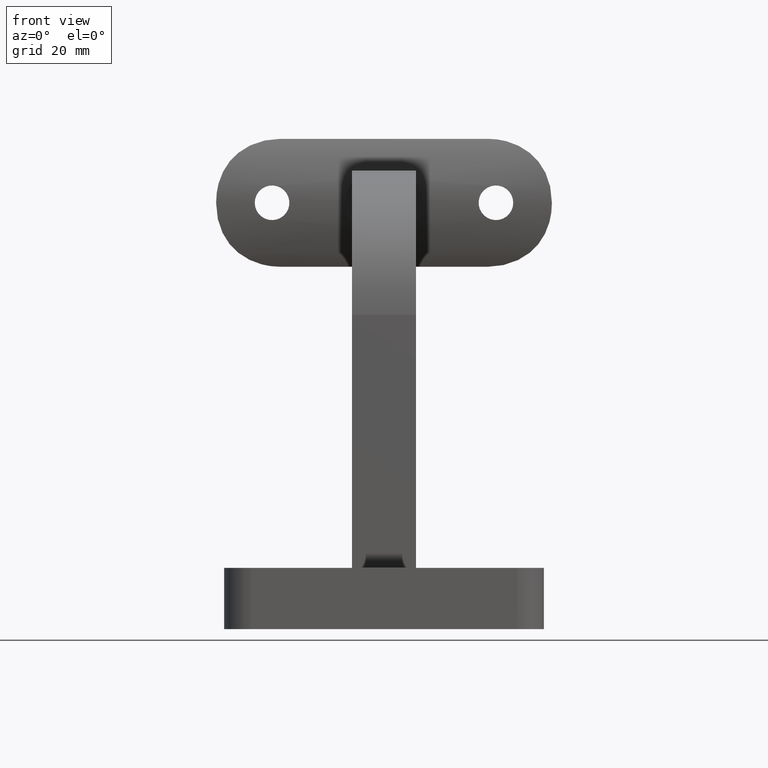
[diagram: clean part render]
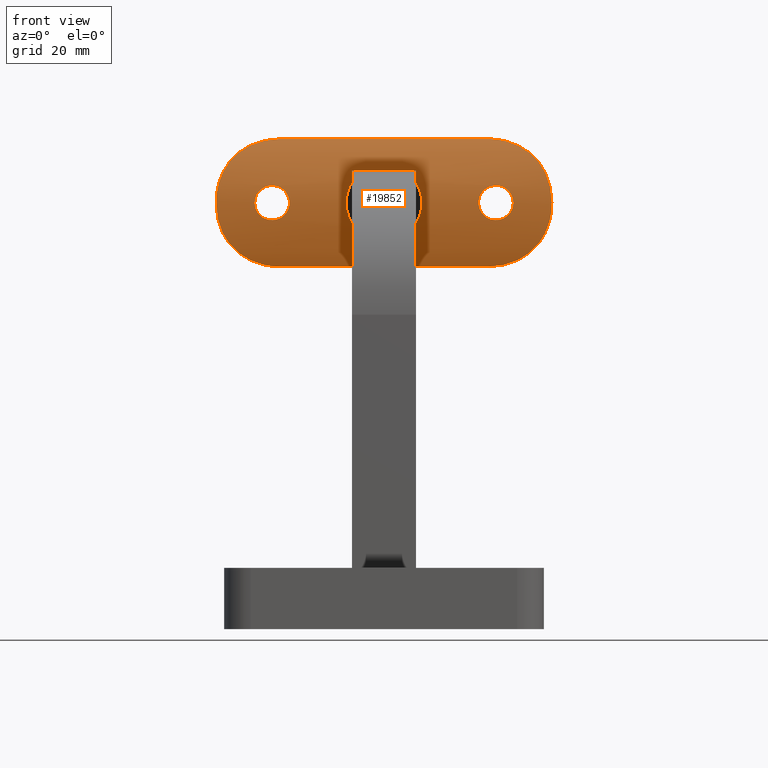
[diagram: same view with one face highlighted and labeled with its STEP entity id]
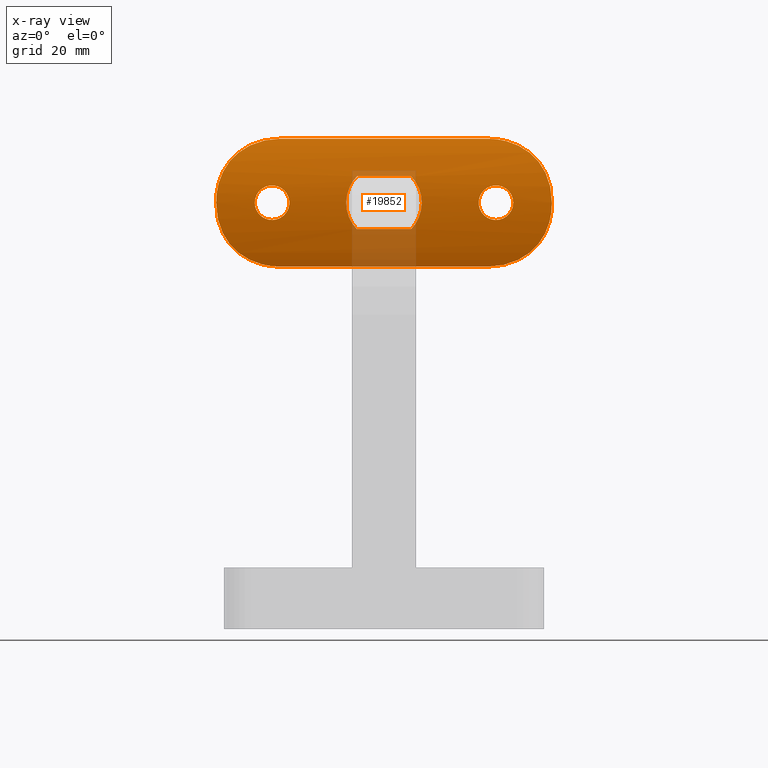
[diagram: x-ray of the same camera — body ghosted, the highlighted face saturated]
A machine part, front view. The second image highlights one B-rep face of the part: STEP entity #19852.
The next image is the same camera in x-ray: the body ghosted, the highlighted face saturated — about 8% of this face is hidden behind the body in this view.
In plain terms, the highlighted cylindrical surface (partial cylindrical patch) has radius 24.7 mm, axis along (1, -0, -0).
Its self-contained STEP definition (entity closure, byte-faithful):
#20 = B_SPLINE_CURVE_WITH_KNOTS ( 'NONE', 3,
 ( #4424, #10915, #10840, #1337, #1397, #2967, #5829, #12714, #11060, #6320, #17378, #14137, #12844, #4843, #9395, #3040, #17499, #1733, #12574, #7974, #7904, #15925, #6379, #14344 ),
 .UNSPECIFIED., .F., .F.,
 ( 4, 2, 2, 2, 2, 2, 2, 2, 2, 2, 2, 4 ),
 ( 1.018549874411314213E-19, 0.002407596472457979985, 0.003611394708686971496, 0.004815192944915964307, 0.007222789417373949930, 0.008426587653602947078, 0.009630385889831942492, 0.01083418412606093964, 0.01203798236228993505, 0.01444557883474792935, 0.01685317530720592538, 0.01926077177966391968 ),
 .UNSPECIFIED. ) ;
#60 = CARTESIAN_POINT ( 'NONE',  ( 3.249880998723770009, -3.285266457778697191, -21.21401965252696797 ) ) ;
#186 = CARTESIAN_POINT ( 'NONE',  ( 2.148643466521440448, -3.406827119913415469, -23.44758434933312685 ) ) ;
#209 = CARTESIAN_POINT ( 'NONE',  ( -4.345683333910672630, -3.117644390435899027, 30.82586979659556192 ) ) ;
#233 = CARTESIAN_POINT ( 'NONE',  ( 12.00000000000000000, -0.3891176290278198224, 20.31369584259640604 ) ) ;
#253 = CARTESIAN_POINT ( 'NONE',  ( 1.631891750141179154, -3.446663392802080672, 18.18145392592213838 ) ) ;
#324 = CARTESIAN_POINT ( 'NONE',  ( -3.084503152530318371, -3.306786141279531854, 22.04579137482486928 ) ) ;
#377 = CARTESIAN_POINT ( 'NONE',  ( 1.616414263079191338, -3.459901341102897376, 31.43731128375658201 ) ) ;
#396 = CARTESIAN_POINT ( 'NONE',  ( -0.4274466900177084638, -3.497194931004350860, 24.22888114623808065 ) ) ;
#462 = CARTESIAN_POINT ( 'NONE',  ( 0.2134336483071487822, -3.499989428722896978, 17.75008034171161242 ) ) ;
#597 = CARTESIAN_POINT ( 'NONE',  ( 3.097063540819441130, -3.305910537528220949, -6.392974342041944702 ) ) ;
#652 = CARTESIAN_POINT ( 'NONE',  ( 4.944694126030440451, -2.999999999999999556, -5.095095681142804978 ) ) ;
#655 = CARTESIAN_POINT ( 'NONE',  ( -11.92859548616417698, -0.4292482158758177402, -21.11347366024902783 ) ) ;
#709 = CARTESIAN_POINT ( 'NONE',  ( -2.919109473246688680, -3.327037974719329938, -19.55546040873659663 ) ) ;
#727 = EDGE_CURVE ( 'NONE', #10520, #6050, #10445, .T. ) ;
#765 = ORIENTED_EDGE ( 'NONE', *, *, #1102, .F. ) ;
#868 = DIRECTION ( 'NONE',  ( -0.000000000000000000, -0.000000000000000000, -1.000000000000000000 ) ) ;
#922 = CARTESIAN_POINT ( 'NONE',  ( -9.174398946052685133, -1.734467328778706907, -27.58503671903728005 ) ) ;
#988 = CARTESIAN_POINT ( 'NONE',  ( 0.4532788388944515856, -3.500063135315374829, 7.100219639782651804 ) ) ;
#1063 = CARTESIAN_POINT ( 'NONE',  ( 3.495493188238731008, -3.254484873472217377, 6.196811374408940587 ) ) ;
#1102 = EDGE_CURVE ( 'NONE', #10811, #16059, #19742, .T. ) ;
#1126 = CARTESIAN_POINT ( 'NONE',  ( -0.9240031095776750636, -3.486776667714122979, 7.054365866429916032 ) ) ;
#1337 = CARTESIAN_POINT ( 'NONE',  ( 2.796109589762970860, -3.344419946068636129, -31.23832297120842583 ) ) ;
#1397 = CARTESIAN_POINT ( 'NONE',  ( 3.186978305075531370, -3.296663330154672611, -31.15440249755115332 ) ) ;
#1527 = FACE_BOUND ( 'NONE', #13715, .T. ) ;
#1593 = LINE ( 'NONE', #1783, #18667 ) ;
#1632 = CARTESIAN_POINT ( 'NONE',  ( 12.00000000000000178, -0.3891176290278198779, -19.50000000000000355 ) ) ;
#1635 = ORIENTED_EDGE ( 'NONE', *, *, #727, .T. ) ;
#1649 = CARTESIAN_POINT ( 'NONE',  ( 1.048445795597582553, -3.478523968811645162, -17.91639793004620884 ) ) ;
#1714 = CARTESIAN_POINT ( 'NONE',  ( 2.819978761927810051, -3.338779599132366549, -19.37058408495830975 ) ) ;
#1733 = CARTESIAN_POINT ( 'NONE',  ( 10.51579242464841357, -1.154463491023566490, -25.65865357391695412 ) ) ;
#1741 = EDGE_CURVE ( 'NONE', #16082, #15120, #15395, .T. ) ;
#1783 = CARTESIAN_POINT ( 'NONE',  ( -4.944694126030445780, -2.999999999999999112, 31.50000000000000000 ) ) ;
#1887 = CARTESIAN_POINT ( 'NONE',  ( 2.804642605329991767, -3.343479015047384539, 31.23668300403213749 ) ) ;
#1905 = CARTESIAN_POINT ( 'NONE',  ( 1.818665662782729120, -3.437028619440265054, -6.878249394357240476 ) ) ;
#1910 = CARTESIAN_POINT ( 'NONE',  ( -1.631801882374062984, -3.446681808548467618, 23.81876159671215731 ) ) ;
#1975 = CARTESIAN_POINT ( 'NONE',  ( -4.616574547446769650, -3.067043427804063693, -5.413529534870623827 ) ) ;
#1997 = CARTESIAN_POINT ( 'NONE',  ( -8.911261608662785605, -1.838321853592154609, 27.88239206832154693 ) ) ;
#2010 = CYLINDRICAL_SURFACE ( 'NONE', #9292, 24.69999999999999929 ) ;
#2027 = CARTESIAN_POINT ( 'NONE',  ( 11.92859548616417875, -0.4292482158758161304, 21.11347366024901717 ) ) ;
#2045 = CARTESIAN_POINT ( 'NONE',  ( -1.052444521325399451, -3.478343608760877892, 24.08214993768254786 ) ) ;
#2082 = CARTESIAN_POINT ( 'NONE',  ( -3.084503152530318371, -3.306786141279530966, -22.04579137482486928 ) ) ;
#2195 = CARTESIAN_POINT ( 'NONE',  ( -9.882580253765651079, -1.437978920396825622, 26.65824030469761752 ) ) ;
#2214 = CARTESIAN_POINT ( 'NONE',  ( -3.249807177699458371, -3.285276256254570093, -20.78221223882569291 ) ) ;
#2265 = CARTESIAN_POINT ( 'NONE',  ( -9.653965207986141550, -1.536749814308947748, 26.98022621720532399 ) ) ;
#2295 = CARTESIAN_POINT ( 'NONE',  ( -10.86687449944537320, -0.9833561896143341308, -24.95091473416315608 ) ) ;
#2359 = VECTOR ( 'NONE', #7603, 1000.000000000000000 ) ;
#2419 = CARTESIAN_POINT ( 'NONE',  ( -4.263216709342484201, -3.132316574868765802, 5.695535537392245828 ) ) ;
#2688 = CARTESIAN_POINT ( 'NONE',  ( 3.090487835511218861, -3.309543690326352650, 6.408178955208401639 ) ) ;
#2702 = EDGE_CURVE ( 'NONE', #6050, #10421, #17119, .T. ) ;
#2967 = CARTESIAN_POINT ( 'NONE',  ( 3.961919930534429479, -3.183324947430789642, -30.94830242344761828 ) ) ;
#2994 = CARTESIAN_POINT ( 'NONE',  ( -7.497033304171731416, -2.344925040722428022, -29.19690548182576251 ) ) ;
#3040 = CARTESIAN_POINT ( 'NONE',  ( 9.653965207986139774, -1.536749814308946638, -26.98022621720533465 ) ) ;
#3154 = CARTESIAN_POINT ( 'NONE',  ( 2.582514304022025531, -3.364912029721630393, -22.98463302487810722 ) ) ;
#3200 = CARTESIAN_POINT ( 'NONE',  ( 12.00000000000000178, -0.3891176290278198779, 19.50000000000000000 ) ) ;
#3217 = CARTESIAN_POINT ( 'NONE',  ( 3.228968999414810970, -3.288068742268655420, -20.57402802110503259 ) ) ;
#3225 = ORIENTED_EDGE ( 'NONE', *, *, #16069, .T. ) ;
#3245 = VERTEX_POINT ( 'NONE', #11935 ) ;
#3292 = CARTESIAN_POINT ( 'NONE',  ( 1.048488193951796488, -3.478522546845636665, -24.08359138282293088 ) ) ;
#3343 = CARTESIAN_POINT ( 'NONE',  ( 2.995621684029787511E-15, -3.499999999999999556, 31.50000000000000000 ) ) ;
#3361 = CARTESIAN_POINT ( 'NONE',  ( 1.983576646391062459, -3.420855199813044756, -18.41684372447764062 ) ) ;
#3366 = CARTESIAN_POINT ( 'NONE',  ( 1.983576646391062459, -3.420855199813044756, 18.41684372447764773 ) ) ;
#3398 = ORIENTED_EDGE ( 'NONE', *, *, #1741, .T. ) ;
#3414 = CARTESIAN_POINT ( 'NONE',  ( 9.890151245574553940, -1.434654235787243159, 26.64699636764817470 ) ) ;
#3435 = CARTESIAN_POINT ( 'NONE',  ( 2.819978761927810051, -3.338779599132366549, 19.37058408495830264 ) ) ;
#3499 = CARTESIAN_POINT ( 'NONE',  ( -1.986943769982261632, -3.420596174952430069, 23.58074577929470905 ) ) ;
#3519 = CARTESIAN_POINT ( 'NONE',  ( 2.995621684029787511E-15, -3.499999999999999556, 31.50000000000000000 ) ) ;
#3558 = CARTESIAN_POINT ( 'NONE',  ( -3.082714793016406496, -3.307012495101080418, 19.94892233757736477 ) ) ;
#3603 = CARTESIAN_POINT ( 'NONE',  ( 3.199605881044099043, -3.295028801910493410, 31.15149741152382390 ) ) ;
#3623 = CARTESIAN_POINT ( 'NONE',  ( -2.445857231437020385, -3.379065480835992119, 18.84938136638995232 ) ) ;
#3642 = CARTESIAN_POINT ( 'NONE',  ( -8.077189355929988324, -2.144204123385022420, 28.69694654420741031 ) ) ;
#3688 = CARTESIAN_POINT ( 'NONE',  ( 0.4601336426034063343, -3.499936389094195022, -7.099778705698458481 ) ) ;
#3711 = ORIENTED_EDGE ( 'NONE', *, *, #14779, .T. ) ;
#3733 = CARTESIAN_POINT ( 'NONE',  ( -1.438119886177334772, -3.458876220669374391, -18.07782101119127205 ) ) ;
#3768 = CARTESIAN_POINT ( 'NONE',  ( 12.00000000000000178, -0.3891176290278198779, 19.50000000000000000 ) ) ;
#3804 = CARTESIAN_POINT ( 'NONE',  ( -3.145441558617082300, -3.298937748419579652, -20.15526232580828747 ) ) ;
#3821 = CARTESIAN_POINT ( 'NONE',  ( -11.41587513011002031, -0.7039332646957846551, -23.45570776623292986 ) ) ;
#3881 = CARTESIAN_POINT ( 'NONE',  ( -3.228488752594627531, -3.288132100549915560, -20.57076263997145205 ) ) ;
#3950 = CARTESIAN_POINT ( 'NONE',  ( -1.627349625629135321, -3.446975909061670951, -18.17868679901903306 ) ) ;
#4085 = CARTESIAN_POINT ( 'NONE',  ( -3.695949713598318365, -3.222666057725251498, 6.066382048361383283 ) ) ;
#4424 = CARTESIAN_POINT ( 'NONE',  ( -5.975428329596222389E-16, -3.499999999999999556, -31.50000000000000000 ) ) ;
#4474 = CARTESIAN_POINT ( 'NONE',  ( 4.944694126030440451, -2.999999999999999112, 31.50000000000000000 ) ) ;
#4586 = EDGE_LOOP ( 'NONE', ( #1635, #12215, #3711, #765, #3225, #13175 ) ) ;
#4762 = CARTESIAN_POINT ( 'NONE',  ( -5.421010862427522170E-17, -3.500000000000000444, -24.24999999999999289 ) ) ;
#4828 = CARTESIAN_POINT ( 'NONE',  ( 3.084555791033617655, -3.306779691159285495, -19.95433615908088143 ) ) ;
#4831 = CARTESIAN_POINT ( 'NONE',  ( 2.448068854155371454, -3.378843921975783982, 23.14809142697421152 ) ) ;
#4843 = CARTESIAN_POINT ( 'NONE',  ( 8.911261608662778499, -1.838321853592151500, -27.88239206832154693 ) ) ;
#4849 = CARTESIAN_POINT ( 'NONE',  ( -0.8129412476029729273, -3.500000000000002220, 31.50000000000000000 ) ) ;
#4893 = CARTESIAN_POINT ( 'NONE',  ( 2.920924858137348146, -3.326819413791212821, -22.44065377375131831 ) ) ;
#4916 = CARTESIAN_POINT ( 'NONE',  ( 2.995621684029787511E-15, -3.499999999999999556, 31.50000000000000000 ) ) ;
#4944 = CARTESIAN_POINT ( 'NONE',  ( 0.8132883673673647618, -3.499999999999998668, 31.50000000000000000 ) ) ;
#4965 = CARTESIAN_POINT ( 'NONE',  ( -2.921687475631708164, -3.326729683492593903, 22.43929899338684919 ) ) ;
#5030 = CARTESIAN_POINT ( 'NONE',  ( -3.495493188238739446, -3.254484873472216488, -6.196811374408935258 ) ) ;
#5035 = CARTESIAN_POINT ( 'NONE',  ( 0.8458750479650837262, -3.486392439299874635, 17.85481623275268248 ) ) ;
#5076 = CARTESIAN_POINT ( 'NONE',  ( 6.166834720918713764, -2.727790392386204577, 30.05461524013826846 ) ) ;
#5093 = CARTESIAN_POINT ( 'NONE',  ( 2.887905581293232604, -3.331514913001702549, -6.490153772127507104 ) ) ;
#5095 = CARTESIAN_POINT ( 'NONE',  ( -3.146949334671616860, -3.298743498262102225, 21.83912333454530597 ) ) ;
#5173 = CARTESIAN_POINT ( 'NONE',  ( -0.2109798347091573489, -3.500010510333770863, 17.74992012145775178 ) ) ;
#5247 = CARTESIAN_POINT ( 'NONE',  ( -3.145441558617082300, -3.298937748419579652, 20.15526232580828747 ) ) ;
#5270 = CARTESIAN_POINT ( 'NONE',  ( -11.92859431294145978, -0.4292547332370194590, 21.11482056701557042 ) ) ;
#5291 = CARTESIAN_POINT ( 'NONE',  ( -1.443264341664996842, -3.458573981125006913, -23.91963623571543351 ) ) ;
#5297 = CARTESIAN_POINT ( 'NONE',  ( -12.00000000000000711, -0.3891176290278207661, 19.50000000000000000 ) ) ;
#5303 = CARTESIAN_POINT ( 'NONE',  ( -12.00000000000000711, -0.3891176290278207661, -19.50000000000000355 ) ) ;
#5321 = EDGE_CURVE ( 'NONE', #3245, #16082, #14486, .T. ) ;
#5423 = CARTESIAN_POINT ( 'NONE',  ( -2.921687475631707276, -3.326729683492594791, -22.43929899338684564 ) ) ;
#5442 = EDGE_CURVE ( 'NONE', #20286, #20286, #17596, .T. ) ;
#5496 = CARTESIAN_POINT ( 'NONE',  ( -1.631801882374063872, -3.446681808548467618, -23.81876159671213955 ) ) ;
#5562 = CARTESIAN_POINT ( 'NONE',  ( 12.00000000000000178, -0.3891176290278198779, 31.50000000000000000 ) ) ;
#5631 = CARTESIAN_POINT ( 'NONE',  ( 2.459850578369857210, -3.378117236160671055, 6.664128095853812717 ) ) ;
#5829 = CARTESIAN_POINT ( 'NONE',  ( 4.345683333910669965, -3.117644390435898138, -30.82586979659556548 ) ) ;
#6050 = VERTEX_POINT ( 'NONE', #19057 ) ;
#6115 = CARTESIAN_POINT ( 'NONE',  ( -8.099404966363247027, -2.141546448550109449, -28.70539369568060195 ) ) ;
#6225 = CARTESIAN_POINT ( 'NONE',  ( 2.582514304022025531, -3.364912029721630393, 22.98463302487810367 ) ) ;
#6305 = CARTESIAN_POINT ( 'NONE',  ( 3.229180493874203250, -3.288041351211628882, -21.42504068983047105 ) ) ;
#6320 = CARTESIAN_POINT ( 'NONE',  ( 7.147371149447641514, -2.445773758848734936, -29.42307681136129460 ) ) ;
#6365 = CARTESIAN_POINT ( 'NONE',  ( 1.631891750141179154, -3.446663392802080672, -18.18145392592213128 ) ) ;
#6379 = CARTESIAN_POINT ( 'NONE',  ( 12.00000000000000533, -0.3891176290278224870, -20.31369094222388938 ) ) ;
#6431 = CARTESIAN_POINT ( 'NONE',  ( 1.981638893480566432, -3.421016337797383677, -23.58470176822194375 ) ) ;
#6486 = CARTESIAN_POINT ( 'NONE',  ( 5.463922679457855480, -2.899855688073363691, 30.40472026188329480 ) ) ;
#6529 = CARTESIAN_POINT ( 'NONE',  ( -3.186978305075533591, -3.296663330154676608, 31.15440249755114976 ) ) ;
#6554 = CARTESIAN_POINT ( 'NONE',  ( 8.099404966363254132, -2.141546448550108117, 28.70539369568059129 ) ) ;
#6575 = CARTESIAN_POINT ( 'NONE',  ( -2.145980111837815230, -3.407060914855164935, 18.55007194730129072 ) ) ;
#6638 = CARTESIAN_POINT ( 'NONE',  ( 3.250117987902504169, -3.285235001506537689, 20.78960992835651211 ) ) ;
#6704 = CARTESIAN_POINT ( 'NONE',  ( -0.8475358459718710380, -3.486349084516868313, 24.14484771000625329 ) ) ;
#6734 = FACE_BOUND ( 'NONE', #14851, .T. ) ;
#6792 = CARTESIAN_POINT ( 'NONE',  ( 0.000000000000000000, -3.499999999999999556, 24.25000000000000355 ) ) ;
#6812 = CARTESIAN_POINT ( 'NONE',  ( -0.4274466900177084638, -3.497194931004350860, -24.22888114623807709 ) ) ;
#6940 = CARTESIAN_POINT ( 'NONE',  ( -3.146949334671616860, -3.298743498262102225, -21.83912333454529175 ) ) ;
#7088 = CARTESIAN_POINT ( 'NONE',  ( -12.00000000000000178, -0.3891176290278237637, -20.31369584259641314 ) ) ;
#7235 = CARTESIAN_POINT ( 'NONE',  ( -5.975428329596222389E-16, -3.499999999999999556, -31.50000000000000000 ) ) ;
#7294 = CARTESIAN_POINT ( 'NONE',  ( 1.582289455885774743, -3.450298392254330437, 6.925242223212474180 ) ) ;
#7298 = CARTESIAN_POINT ( 'NONE',  ( -4.354802112542866865, -3.115994167807660808, -30.82274288943988338 ) ) ;
#7353 = CARTESIAN_POINT ( 'NONE',  ( -2.253694150819506969, -3.400645377057069929, 6.748276906282370646 ) ) ;
#7411 = VECTOR ( 'NONE', #15167, 1000.000000000000000 ) ;
#7603 = DIRECTION ( 'NONE',  ( -0.000000000000000000, -0.000000000000000000, -1.000000000000000000 ) ) ;
#7727 = FACE_BOUND ( 'NONE', #15098, .T. ) ;
#7820 = CARTESIAN_POINT ( 'NONE',  ( 2.448068854155371454, -3.378843921975783982, -23.14809142697421862 ) ) ;
#7841 = CARTESIAN_POINT ( 'NONE',  ( 0.000000000000000000, -3.499999999999999556, -24.25000000000000000 ) ) ;
#7887 = CARTESIAN_POINT ( 'NONE',  ( 1.441954681305530395, -3.458661141373547299, -23.92038182540180102 ) ) ;
#7904 = CARTESIAN_POINT ( 'NONE',  ( 11.64506833623742565, -0.5832138593540771021, -22.69272106915794751 ) ) ;
#7954 = CARTESIAN_POINT ( 'NONE',  ( 0.8419598421202363348, -3.486521205037465432, -24.14618980535316695 ) ) ;
#7974 = CARTESIAN_POINT ( 'NONE',  ( 11.42949741348638426, -0.6987825248718153581, -23.47544721763576803 ) ) ;
#8024 = CARTESIAN_POINT ( 'NONE',  ( 0.8458750479650837262, -3.486392439299874635, -17.85481623275268248 ) ) ;
#8141 = EDGE_CURVE ( 'NONE', #13392, #10520, #18782, .T. ) ;
#8158 = CARTESIAN_POINT ( 'NONE',  ( -0.4220505040573415134, -3.497286553197269221, 17.77042330278525029 ) ) ;
#8207 = CARTESIAN_POINT ( 'NONE',  ( 9.661430124385200102, -1.533590909220055032, 26.97020615263074106 ) ) ;
#8224 = CARTESIAN_POINT ( 'NONE',  ( -0.4532788388944590796, -3.500063135315376162, -7.100219639782650916 ) ) ;
#8227 = CARTESIAN_POINT ( 'NONE',  ( 0.4289946887875571990, -3.497154488339017320, 17.77143234800352189 ) ) ;
#8295 = CARTESIAN_POINT ( 'NONE',  ( -3.228488752594627531, -3.288132100549915560, 20.57076263997145560 ) ) ;
#8355 = CARTESIAN_POINT ( 'NONE',  ( -2.245267307056681538, -3.398721426659001121, -6.739512301257460258 ) ) ;
#8359 = CARTESIAN_POINT ( 'NONE',  ( 3.145966426978843877, -3.298870316110066980, 20.15703608244032452 ) ) ;
#8382 = CARTESIAN_POINT ( 'NONE',  ( -9.168815601873276933, -1.736688008828346286, 27.59147257706480616 ) ) ;
#8402 = CARTESIAN_POINT ( 'NONE',  ( -0.8475358459718710380, -3.486349084516868313, -24.14484771000624264 ) ) ;
#8433 = CARTESIAN_POINT ( 'NONE',  ( -1.046874735027936598, -3.478582182987588034, 17.91594874575436691 ) ) ;
#8500 = CARTESIAN_POINT ( 'NONE',  ( 4.616611143868042610, -3.067035950196238758, -5.413494018734981594 ) ) ;
#8524 = CARTESIAN_POINT ( 'NONE',  ( -7.147371149447642402, -2.445773758848735380, 29.42307681136128394 ) ) ;
#8664 = CARTESIAN_POINT ( 'NONE',  ( -0.2149600074958210039, -3.500000000000001332, -24.24999999999998934 ) ) ;
#8678 = CARTESIAN_POINT ( 'NONE',  ( -9.890151245574543282, -1.434654235787247600, -26.64699636764817114 ) ) ;
#8965 = CARTESIAN_POINT ( 'NONE',  ( 0.9068080529476620910, -3.487468524590446872, 7.056782428599993828 ) ) ;
#9292 = AXIS2_PLACEMENT_3D ( 'NONE', #12117, #868, #18157 ) ;
#9395 = CARTESIAN_POINT ( 'NONE',  ( 9.168815601873276933, -1.736688008828345620, -27.59147257706480971 ) ) ;
#9450 = CARTESIAN_POINT ( 'NONE',  ( 0.4289946887875571990, -3.497154488339017320, -17.77143234800352189 ) ) ;
#9462 = EDGE_CURVE ( 'NONE', #12379, #3245, #13133, .T. ) ;
#9481 = B_SPLINE_CURVE_WITH_KNOTS ( 'NONE', 3,
 ( #3200, #233, #2027, #11429, #12938, #9963, #17733, #17535, #14579, #3414, #8207, #14511, #17598, #6554, #19185, #5076, #6486, #11504, #13073, #3603, #1887, #377, #4944, #3343 ),
 .UNSPECIFIED., .F., .F.,
 ( 4, 2, 2, 2, 2, 2, 2, 2, 2, 2, 2, 4 ),
 ( 0.000000000000000000, 0.002406580534152873152, 0.003609870801229308861, 0.004813161068305744569, 0.007219741602458615987, 0.008423031869535050828, 0.009626322136611485669, 0.01203290267076435882, 0.01443948320491723024, 0.01564277347199366508, 0.01684606373907009819, 0.01925264427322297134 ),
 .UNSPECIFIED. ) ;
#9522 = CARTESIAN_POINT ( 'NONE',  ( 3.083085501326915168, -3.306963426241079862, -22.04969953520823012 ) ) ;
#9709 = CARTESIAN_POINT ( 'NONE',  ( 0.4262816367173300480, -3.497196390455035608, -24.22888380609289882 ) ) ;
#9713 = CARTESIAN_POINT ( 'NONE',  ( 1.441954681305530395, -3.458661141373547299, 23.92038182540182234 ) ) ;
#9736 = CARTESIAN_POINT ( 'NONE',  ( -2.796109589762971748, -3.344419946068632576, 31.23832297120842583 ) ) ;
#9843 = CARTESIAN_POINT ( 'NONE',  ( -1.982421812593012644, -3.420960420399060453, 18.41580210916033167 ) ) ;
#9884 = CARTESIAN_POINT ( 'NONE',  ( -5.975428329596222389E-16, -3.499999999999999556, -31.50000000000000000 ) ) ;
#9905 = CARTESIAN_POINT ( 'NONE',  ( -1.807107780545503362, -3.434786026592601349, -6.869979098107219073 ) ) ;
#9910 = CARTESIAN_POINT ( 'NONE',  ( -2.449477864485654077, -3.378702782939691396, 23.14648115479911183 ) ) ;
#9933 = CARTESIAN_POINT ( 'NONE',  ( -11.42949741348638248, -0.6987825248718139148, 23.47544721763575382 ) ) ;
#9963 = CARTESIAN_POINT ( 'NONE',  ( 11.41587513011003630, -0.7039332646957829898, 23.45570776623293341 ) ) ;
#9986 = CARTESIAN_POINT ( 'NONE',  ( 2.584887031182732997, -3.364656388163503209, 19.01867835071173474 ) ) ;
#10121 = CARTESIAN_POINT ( 'NONE',  ( 0.9240031095776671810, -3.486776667714122979, -7.054365866429915144 ) ) ;
#10160 = CARTESIAN_POINT ( 'NONE',  ( -1.986943769982262076, -3.420596174952429624, -23.58074577929468774 ) ) ;
#10298 = CARTESIAN_POINT ( 'NONE',  ( -2.445857231437020385, -3.379065480835992119, -18.84938136638993456 ) ) ;
#10310 = CARTESIAN_POINT ( 'NONE',  ( -9.661430124385194773, -1.533590909220056586, -26.97020615263073751 ) ) ;
#10367 = CARTESIAN_POINT ( 'NONE',  ( -0.4601336426034133287, -3.499936389094194578, 7.099778705698459369 ) ) ;
#10376 = CARTESIAN_POINT ( 'NONE',  ( -6.166834720918711099, -2.727790392386203688, -30.05461524013827557 ) ) ;
#10421 = VERTEX_POINT ( 'NONE', #9884 ) ;
#10445 = LINE ( 'NONE', #15094, #7411 ) ;
#10520 = VERTEX_POINT ( 'NONE', #5297 ) ;
#10574 = CARTESIAN_POINT ( 'NONE',  ( 1.807107780545496256, -3.434786026592604902, 6.869979098107224402 ) ) ;
#10643 = CARTESIAN_POINT ( 'NONE',  ( -4.944694126030445780, -2.999999999999999556, 5.095095681142802313 ) ) ;
#10811 = VERTEX_POINT ( 'NONE', #3768 ) ;
#10840 = CARTESIAN_POINT ( 'NONE',  ( 1.613878791505601207, -3.459937399638181699, -31.43733599986672189 ) ) ;
#10915 = CARTESIAN_POINT ( 'NONE',  ( 0.8129412476029719281, -3.500000000000001332, -31.50000000000000711 ) ) ;
#11045 = CARTESIAN_POINT ( 'NONE',  ( -0.4220505040573415134, -3.497286553197269221, -17.77042330278525029 ) ) ;
#11060 = CARTESIAN_POINT ( 'NONE',  ( 6.158843963928769760, -2.729662869301813455, -30.05830163374236719 ) ) ;
#11103 = CARTESIAN_POINT ( 'NONE',  ( 2.147463236063145597, -3.406941177972779844, -18.55115535936712234 ) ) ;
#11113 = ORIENTED_EDGE ( 'NONE', *, *, #5321, .T. ) ;
#11169 = CARTESIAN_POINT ( 'NONE',  ( 1.628533578940714488, -3.446890606981302785, -23.82054149359075268 ) ) ;
#11171 = CARTESIAN_POINT ( 'NONE',  ( 0.4262816367173300480, -3.497196390455035608, 24.22888380609290948 ) ) ;
#11179 = ORIENTED_EDGE ( 'NONE', *, *, #17187, .T. ) ;
#11246 = CARTESIAN_POINT ( 'NONE',  ( 3.145966426978843877, -3.298870316110066980, -20.15703608244032452 ) ) ;
#11250 = CARTESIAN_POINT ( 'NONE',  ( 1.048488193951796488, -3.478522546845636665, 24.08359138282293088 ) ) ;
#11311 = CARTESIAN_POINT ( 'NONE',  ( 2.820104897840356895, -3.338771190172046488, -22.62946516964676746 ) ) ;
#11333 = CARTESIAN_POINT ( 'NONE',  ( -6.158843963928775089, -2.729662869301814787, 30.05830163374237074 ) ) ;
#11429 = CARTESIAN_POINT ( 'NONE',  ( 11.71699478268042860, -0.5441595704861768024, 22.29309573292401936 ) ) ;
#11447 = CARTESIAN_POINT ( 'NONE',  ( -2.150301673070284636, -3.406681511644020777, 23.44612466389268235 ) ) ;
#11504 = CARTESIAN_POINT ( 'NONE',  ( 4.354802112542873083, -3.115994167807660808, 30.82274288943988694 ) ) ;
#11520 = CARTESIAN_POINT ( 'NONE',  ( -4.261253806439048830, -3.132735543974780601, -5.697425720106942926 ) ) ;
#11524 = CARTESIAN_POINT ( 'NONE',  ( -2.819111302374419203, -3.338881383881762144, 19.36901160357330554 ) ) ;
#11585 = CARTESIAN_POINT ( 'NONE',  ( -2.459850578369866092, -3.378117236160668391, -6.664128095853806499 ) ) ;
#11588 = CARTESIAN_POINT ( 'NONE',  ( -2.919109473246688680, -3.327037974719329938, 19.55546040873660019 ) ) ;
#11667 = CARTESIAN_POINT ( 'NONE',  ( -7.468358965609681377, -2.346049953370365593, 29.19099359684591377 ) ) ;
#11768 = CARTESIAN_POINT ( 'NONE',  ( -11.71699478268041794, -0.5441595704861782457, -22.29309573292401581 ) ) ;
#11822 = CARTESIAN_POINT ( 'NONE',  ( -3.082714793016406496, -3.307012495101080418, -19.94892233757736832 ) ) ;
#11935 = CARTESIAN_POINT ( 'NONE',  ( 4.944694126030440451, -2.999999999999999556, 5.095095681142806754 ) ) ;
#11974 = CARTESIAN_POINT ( 'NONE',  ( -3.097063540819447347, -3.305910537528220505, 6.392974342041942926 ) ) ;
#11982 = CARTESIAN_POINT ( 'NONE',  ( -3.975921368411834411, -3.181057464200420792, -30.94410955837537003 ) ) ;
#12117 = CARTESIAN_POINT ( 'NONE',  ( -2.596251214192388770E-15, 21.19999999999999929, 31.50000000000000000 ) ) ;
#12215 = ORIENTED_EDGE ( 'NONE', *, *, #2702, .T. ) ;
#12379 = VERTEX_POINT ( 'NONE', #18467 ) ;
#12574 = CARTESIAN_POINT ( 'NONE',  ( 10.86486654361806181, -0.9843359645018946447, -24.95505419486224596 ) ) ;
#12714 = CARTESIAN_POINT ( 'NONE',  ( 5.458459083564774161, -2.901169967168792496, -30.40738950800777474 ) ) ;
#12768 = CARTESIAN_POINT ( 'NONE',  ( -0.8418640684662275220, -3.486541973491128488, -17.85364382795064131 ) ) ;
#12770 = CARTESIAN_POINT ( 'NONE',  ( 2.148643466521440448, -3.406827119913415469, 23.44758434933312685 ) ) ;
#12844 = CARTESIAN_POINT ( 'NONE',  ( 8.365447555507348198, -2.042077026027277586, -28.43512920070712724 ) ) ;
#12938 = CARTESIAN_POINT ( 'NONE',  ( 11.62887820642736436, -0.5915967544966699299, 22.68293612948989235 ) ) ;
#12961 = CARTESIAN_POINT ( 'NONE',  ( -1.443264341664996619, -3.458573981125005137, 23.91963623571545128 ) ) ;
#13021 = CARTESIAN_POINT ( 'NONE',  ( -1.582289455885782514, -3.450298392254329105, -6.925242223212469739 ) ) ;
#13025 = CARTESIAN_POINT ( 'NONE',  ( 3.249880998723770009, -3.285266457778697191, 21.21401965252696797 ) ) ;
#13073 = CARTESIAN_POINT ( 'NONE',  ( 3.975921368411837076, -3.181057464200415019, 30.94410955837537358 ) ) ;
#13092 = CARTESIAN_POINT ( 'NONE',  ( 1.048445795597582553, -3.478523968811645162, 17.91639793004621595 ) ) ;
#13133 = B_SPLINE_CURVE_WITH_KNOTS ( 'NONE', 3,
 ( #10643, #15114, #2419, #4085, #16831, #11974, #16758, #7353, #18408, #1126, #10367, #988, #8965, #7294, #10574, #18332, #5631, #2688, #1063, #18552, #19913, #13808 ),
 .UNSPECIFIED., .F., .F.,
 ( 4, 2, 2, 2, 2, 2, 2, 2, 2, 2, 4 ),
 ( 0.000000000000000000, 0.001367070572125397799, 0.002050605858188096157, 0.002734141144250794731, 0.004101211716376194048, 0.005468282288501592932, 0.006835352860626992683, 0.007518888146689693859, 0.008202423432752393301, 0.009569494004877793919, 0.01093656457700319627 ),
 .UNSPECIFIED. ) ;
#13154 = CARTESIAN_POINT ( 'NONE',  ( -0.2149600074958210039, -3.500000000000001332, 24.25000000000000000 ) ) ;
#13162 = VERTEX_POINT ( 'NONE', #6792 ) ;
#13175 = ORIENTED_EDGE ( 'NONE', *, *, #8141, .T. ) ;
#13199 = CARTESIAN_POINT ( 'NONE',  ( -2.449477864485654077, -3.378702782939688731, -23.14648115479910828 ) ) ;
#13312 = CARTESIAN_POINT ( 'NONE',  ( -12.00000000000000355, -0.3891176290278253735, 20.31369094222388227 ) ) ;
#13343 = CARTESIAN_POINT ( 'NONE',  ( -11.62887820642736436, -0.5915967544966715952, -22.68293612948989946 ) ) ;
#13392 = VERTEX_POINT ( 'NONE', #3519 ) ;
#13398 = CARTESIAN_POINT ( 'NONE',  ( -3.229275557674607722, -3.288027737676937345, -21.42331720750980040 ) ) ;
#13467 = CARTESIAN_POINT ( 'NONE',  ( -1.982421812593012644, -3.420960420399060453, -18.41580210916032811 ) ) ;
#13546 = CARTESIAN_POINT ( 'NONE',  ( -1.616414263079185121, -3.459901341102897820, -31.43731128375658912 ) ) ;
#13619 = CARTESIAN_POINT ( 'NONE',  ( -8.916507318172458341, -1.836285184458887887, -27.87664932174586241 ) ) ;
#13715 = EDGE_LOOP ( 'NONE', ( #14221 ) ) ;
#13808 = CARTESIAN_POINT ( 'NONE',  ( 4.944694126030440451, -2.999999999999999556, 5.095095681142806754 ) ) ;
#14090 = CARTESIAN_POINT ( 'NONE',  ( -5.463922679457850151, -2.899855688073363691, -30.40472026188329124 ) ) ;
#14123 = CARTESIAN_POINT ( 'NONE',  ( 0.8419598421202363348, -3.486521205037465432, 24.14618980535316695 ) ) ;
#14137 = CARTESIAN_POINT ( 'NONE',  ( 8.077189355929984771, -2.144204123385021976, -28.69694654420741742 ) ) ;
#14165 = FACE_OUTER_BOUND ( 'NONE', #4586, .T. ) ;
#14192 = CARTESIAN_POINT ( 'NONE',  ( 0.2149600074958208928, -3.499999999999999112, -24.25000000000000000 ) ) ;
#14221 = ORIENTED_EDGE ( 'NONE', *, *, #15235, .T. ) ;
#14257 = CARTESIAN_POINT ( 'NONE',  ( 2.921636230268347401, -3.326735962964975535, -19.56057683977639172 ) ) ;
#14344 = CARTESIAN_POINT ( 'NONE',  ( 12.00000000000000178, -0.3891176290278198779, -19.50000000000000355 ) ) ;
#14467 = CARTESIAN_POINT ( 'NONE',  ( -1.627349625629135321, -3.446975909061670951, 18.17868679901904017 ) ) ;
#14486 = LINE ( 'NONE', #4474, #2359 ) ;
#14511 = CARTESIAN_POINT ( 'NONE',  ( 9.174398946052690462, -1.734467328778705797, 27.58503671903729071 ) ) ;
#14529 = CARTESIAN_POINT ( 'NONE',  ( 4.944694126030440451, -2.999999999999999556, -5.095095681142804978 ) ) ;
#14531 = CARTESIAN_POINT ( 'NONE',  ( 2.450461030192566447, -3.378616584868296080, 18.85438140301992505 ) ) ;
#14579 = CARTESIAN_POINT ( 'NONE',  ( 10.51842810678145845, -1.153150254458431112, 25.65304723848731072 ) ) ;
#14596 = CARTESIAN_POINT ( 'NONE',  ( 3.695949713598313036, -3.222666057725251054, -6.066382048361384172 ) ) ;
#14600 = CARTESIAN_POINT ( 'NONE',  ( -2.586419452875106550, -3.364496326919987457, 22.97940370198354998 ) ) ;
#14675 = CARTESIAN_POINT ( 'NONE',  ( -3.090487835511225967, -3.309543690326349541, -6.408178955208393646 ) ) ;
#14678 = CARTESIAN_POINT ( 'NONE',  ( 3.145602793858011115, -3.298917505554015861, 21.84465928829434134 ) ) ;
#14739 = CARTESIAN_POINT ( 'NONE',  ( -4.944694126030445780, -2.999999999999999556, -5.095095681142800537 ) ) ;
#14743 = CARTESIAN_POINT ( 'NONE',  ( -3.229275557674607722, -3.288027737676937345, 21.42331720750980395 ) ) ;
#14758 = CARTESIAN_POINT ( 'NONE',  ( -10.86486654361805826, -0.9843359645018935344, 24.95505419486224952 ) ) ;
#14772 = CARTESIAN_POINT ( 'NONE',  ( -2.583148365582440320, -3.364841392298523193, -19.01635280207329259 ) ) ;
#14779 = EDGE_CURVE ( 'NONE', #10421, #16059, #20, .T. ) ;
#14851 = EDGE_LOOP ( 'NONE', ( #17631 ) ) ;
#14919 = CARTESIAN_POINT ( 'NONE',  ( -11.29067707203921067, -0.7689707214613790143, -23.83865606415823279 ) ) ;
#14974 = CARTESIAN_POINT ( 'NONE',  ( -2.822021043315668720, -3.338546057428910085, -22.62597719317353295 ) ) ;
#15037 = CARTESIAN_POINT ( 'NONE',  ( -3.250190240478200820, -3.285225411215453306, -21.21199434389743388 ) ) ;
#15094 = CARTESIAN_POINT ( 'NONE',  ( -12.00000000000000711, -0.3891176290278207661, 31.50000000000000000 ) ) ;
#15098 = EDGE_LOOP ( 'NONE', ( #16744, #11113, #3398, #11179 ) ) ;
#15114 = CARTESIAN_POINT ( 'NONE',  ( -4.616611143868048828, -3.067035950196237426, 5.413494018734980706 ) ) ;
#15120 = VERTEX_POINT ( 'NONE', #19758 ) ;
#15167 = DIRECTION ( 'NONE',  ( -0.000000000000000000, -0.000000000000000000, -1.000000000000000000 ) ) ;
#15235 = EDGE_CURVE ( 'NONE', #13162, #13162, #18829, .T. ) ;
#15395 = B_SPLINE_CURVE_WITH_KNOTS ( 'NONE', 3,
 ( #14529, #8500, #19521, #14596, #17827, #597, #5093, #19449, #1905, #10121, #3688, #8224, #19331, #13021, #9905, #8355, #11585, #14675, #5030, #11520, #1975, #14739 ),
 .UNSPECIFIED., .F., .F.,
 ( 4, 2, 2, 2, 2, 2, 2, 2, 2, 2, 4 ),
 ( 0.000000000000000000, 0.001367070572125402136, 0.002050605858188102228, 0.002734141144250802971, 0.004101211716376200987, 0.005468282288501599871, 0.006835352860626997887, 0.007518888146689696461, 0.008202423432752395036, 0.009569494004877795654, 0.01093656457700319454 ),
 .UNSPECIFIED. ) ;
#15681 = CARTESIAN_POINT ( 'NONE',  ( -0.8132883673673630964, -3.499999999999998668, -31.49999999999999289 ) ) ;
#15711 = CARTESIAN_POINT ( 'NONE',  ( 1.628533578940714488, -3.446890606981302785, 23.82054149359075623 ) ) ;
#15782 = CARTESIAN_POINT ( 'NONE',  ( 3.145602793858011115, -3.298917505554015861, -21.84465928829433423 ) ) ;
#15816 = VECTOR ( 'NONE', #19984, 1000.000000000000000 ) ;
#15843 = CARTESIAN_POINT ( 'NONE',  ( 2.584887031182732997, -3.364656388163503209, -19.01867835071172408 ) ) ;
#15845 = CARTESIAN_POINT ( 'NONE',  ( -5.421010862427522170E-17, -3.500000000000000444, 24.25000000000000355 ) ) ;
#15909 = CARTESIAN_POINT ( 'NONE',  ( -1.046874735027936598, -3.478582182987588034, -17.91594874575436336 ) ) ;
#15911 = CARTESIAN_POINT ( 'NONE',  ( 2.820104897840356895, -3.338771190172046488, 22.62946516964677102 ) ) ;
#15925 = CARTESIAN_POINT ( 'NONE',  ( 11.92859431294146155, -0.4292547332370142965, -21.11482056701557752 ) ) ;
#15992 = CARTESIAN_POINT ( 'NONE',  ( -1.613878791505604093, -3.459937399638179922, 31.43733599986672900 ) ) ;
#16039 = CARTESIAN_POINT ( 'NONE',  ( -2.583148365582440320, -3.364841392298523193, 19.01635280207329259 ) ) ;
#16059 = VERTEX_POINT ( 'NONE', #1632 ) ;
#16069 = EDGE_CURVE ( 'NONE', #10811, #13392, #9481, .T. ) ;
#16082 = VERTEX_POINT ( 'NONE', #652 ) ;
#16103 = CARTESIAN_POINT ( 'NONE',  ( -0.8418640684662275220, -3.486541973491128488, 17.85364382795063776 ) ) ;
#16172 = CARTESIAN_POINT ( 'NONE',  ( -2.822021043315670497, -3.338546057428907865, 22.62597719317354006 ) ) ;
#16472 = CARTESIAN_POINT ( 'NONE',  ( -11.64506833623742743, -0.5832138593540825422, 22.69272106915794396 ) ) ;
#16554 = CARTESIAN_POINT ( 'NONE',  ( -1.052444521325399895, -3.478343608760879224, -24.08214993768254431 ) ) ;
#16744 = ORIENTED_EDGE ( 'NONE', *, *, #9462, .T. ) ;
#16758 = CARTESIAN_POINT ( 'NONE',  ( -2.887905581293237045, -3.331514913001699885, 6.490153772127506215 ) ) ;
#16831 = CARTESIAN_POINT ( 'NONE',  ( -3.500619854551538790, -3.251525810941315875, 6.181228368843791010 ) ) ;
#16841 = CARTESIAN_POINT ( 'NONE',  ( -3.199605881044096822, -3.295028801910499627, -31.15149741152382745 ) ) ;
#17119 = B_SPLINE_CURVE_WITH_KNOTS ( 'NONE', 3,
 ( #5303, #7088, #655, #11768, #13343, #3821, #14919, #2295, #18144, #8678, #10310, #922, #13619, #6115, #2994, #10376, #14090, #7298, #11982, #16841, #18419, #13546, #15681, #7235 ),
 .UNSPECIFIED., .F., .F.,
 ( 4, 2, 2, 2, 2, 2, 2, 2, 2, 2, 2, 4 ),
 ( 3.476216610979977084E-18, 0.002406580534152875320, 0.003609870801229310595, 0.004813161068305746304, 0.007219741602458626395, 0.008423031869535066440, 0.009626322136611503016, 0.01203290267076437096, 0.01443948320491723891, 0.01564277347199367202, 0.01684606373907010513, 0.01925264427322297828 ),
 .UNSPECIFIED. ) ;
#17187 = EDGE_CURVE ( 'NONE', #15120, #12379, #1593, .T. ) ;
#17378 = CARTESIAN_POINT ( 'NONE',  ( 7.468358965609676048, -2.346049953370364705, -29.19099359684591377 ) ) ;
#17426 = CARTESIAN_POINT ( 'NONE',  ( 0.2149600074958208928, -3.499999999999999112, 24.25000000000000711 ) ) ;
#17477 = CARTESIAN_POINT ( 'NONE',  ( -0.2109798347091573489, -3.500010510333770863, -17.74992012145774822 ) ) ;
#17481 = CARTESIAN_POINT ( 'NONE',  ( 2.920924858137348146, -3.326819413791212821, 22.44065377375132897 ) ) ;
#17499 = CARTESIAN_POINT ( 'NONE',  ( 9.882580253765647527, -1.437978920396823845, -26.65824030469762462 ) ) ;
#17535 = CARTESIAN_POINT ( 'NONE',  ( 10.86687449944537320, -0.9833561896143282466, 24.95091473416315964 ) ) ;
#17596 = B_SPLINE_CURVE_WITH_KNOTS ( 'NONE', 3,
 ( #4762, #14192, #9709, #7954, #3292, #7887, #11169, #6431, #186, #7820, #3154, #11311, #4893, #9522, #15782, #6305, #60, #18938, #3217, #11246, #4828, #14257, #1714, #15843, #20493, #11103, #3361, #6365, #18875, #1649, #8024, #9450, #20429, #17477, #11045, #12768, #15909, #3733, #3950, #13467, #19569, #10298, #14772, #19494, #709, #11822, #3804, #3881, #2214, #15037, #13398, #6940, #2082, #5423, #14974, #19636, #13199, #18135, #10160, #5496, #5291, #16554, #8402, #6812, #8664, #19703 ),
 .UNSPECIFIED., .T., .F.,
 ( 4, 2, 2, 2, 2, 2, 2, 2, 2, 2, 2, 2, 2, 2, 2, 2, 2, 2, 2, 2, 2, 2, 2, 2, 2, 2, 2, 2, 2, 2, 2, 2, 4 ),
 ( 0.000000000000000000, 0.0006356739169426549535, 0.001271347833885310124, 0.001907021750827965403, 0.002542695667770621115, 0.003178369584713275960, 0.003814043501655930805, 0.004449717418598586084, 0.005085391335541240496, 0.005721065252483895774, 0.006356739169426551053, 0.006992413086369205465, 0.007628087003311860743, 0.008263760920254515155, 0.008899434837197170434, 0.009535108754139825712, 0.01017078267108247926, 0.01080645658802513454, 0.01144213050496778981, 0.01207780442191044336, 0.01271347833885309864, 0.01334915225579575392, 0.01398482617273840919, 0.01462050008968106447, 0.01525617400662371975, 0.01589184792356637330, 0.01652752184050903031, 0.01716319575745168385, 0.01779886967439433740, 0.01843454359133699441, 0.01907021750827964796, 0.01970589142522230497, 0.02034156534216495851 ),
 .UNSPECIFIED. ) ;
#17598 = CARTESIAN_POINT ( 'NONE',  ( 8.916507318172460117, -1.836285184458885444, 27.87664932174585886 ) ) ;
#17620 = CARTESIAN_POINT ( 'NONE',  ( -3.249807177699458371, -3.285276256254570093, 20.78221223882568935 ) ) ;
#17631 = ORIENTED_EDGE ( 'NONE', *, *, #5442, .F. ) ;
#17682 = CARTESIAN_POINT ( 'NONE',  ( 2.147463236063145597, -3.406941177972779844, 18.55115535936712945 ) ) ;
#17733 = CARTESIAN_POINT ( 'NONE',  ( 11.29067707203921778, -0.7689707214613733521, 23.83865606415823635 ) ) ;
#17754 = CARTESIAN_POINT ( 'NONE',  ( 1.441817418702243669, -3.458668788007271733, 18.07955434167038078 ) ) ;
#17777 = CARTESIAN_POINT ( 'NONE',  ( -10.51579242464841002, -1.154463491023568489, 25.65865357391693991 ) ) ;
#17827 = CARTESIAN_POINT ( 'NONE',  ( 3.500619854551531684, -3.251525810941316319, -6.181228368843791010 ) ) ;
#17832 = CARTESIAN_POINT ( 'NONE',  ( -1.438119886177334772, -3.458876220669374391, 18.07782101119127560 ) ) ;
#17852 = CARTESIAN_POINT ( 'NONE',  ( -12.00000000000000711, -0.3891176290278207661, 19.50000000000000000 ) ) ;
#17898 = CARTESIAN_POINT ( 'NONE',  ( 2.921636230268347401, -3.326735962964975535, 19.56057683977638462 ) ) ;
#18135 = CARTESIAN_POINT ( 'NONE',  ( -2.150301673070284636, -3.406681511644019000, -23.44612466389268235 ) ) ;
#18144 = CARTESIAN_POINT ( 'NONE',  ( -10.51842810678144957, -1.153150254458435775, -25.65304723848730717 ) ) ;
#18157 = DIRECTION ( 'NONE',  ( -1.000000000000000000, 0.000000000000000000, 0.000000000000000000 ) ) ;
#18332 = CARTESIAN_POINT ( 'NONE',  ( 2.245267307056674433, -3.398721426659003342, 6.739512301257463811 ) ) ;
#18408 = CARTESIAN_POINT ( 'NONE',  ( -1.818665662782736225, -3.437028619440265498, 6.878249394357240476 ) ) ;
#18419 = CARTESIAN_POINT ( 'NONE',  ( -2.804642605329985106, -3.343479015047385428, -31.23668300403215170 ) ) ;
#18467 = CARTESIAN_POINT ( 'NONE',  ( -4.944694126030445780, -2.999999999999999556, 5.095095681142802313 ) ) ;
#18552 = CARTESIAN_POINT ( 'NONE',  ( 4.261253806439041725, -3.132735543974781045, 5.697425720106950919 ) ) ;
#18667 = VECTOR ( 'NONE', #19142, 1000.000000000000000 ) ;
#18782 = B_SPLINE_CURVE_WITH_KNOTS ( 'NONE', 3,
 ( #4916, #4849, #15992, #9736, #6529, #19091, #209, #19224, #11333, #8524, #11667, #3642, #19546, #1997, #8382, #2265, #2195, #17777, #14758, #9933, #16472, #5270, #13312, #17852 ),
 .UNSPECIFIED., .F., .F.,
 ( 4, 2, 2, 2, 2, 2, 2, 2, 2, 2, 2, 4 ),
 ( 2.761428510983103297E-18, 0.002407596472457986924, 0.003611394708686980603, 0.004815192944915973848, 0.007222789417373963808, 0.008426587653602960956, 0.009630385889831958104, 0.01083418412606095352, 0.01203798236228994893, 0.01444557883474794149, 0.01685317530720592885, 0.01926077177966391968 ),
 .UNSPECIFIED. ) ;
#18829 = B_SPLINE_CURVE_WITH_KNOTS ( 'NONE', 3,
 ( #15845, #17426, #11171, #14123, #11250, #9713, #15711, #19002, #12770, #4831, #6225, #15911, #17481, #18878, #14678, #19334, #13025, #6638, #19204, #8359, #19391, #17898, #3435, #9986, #14531, #17682, #3366, #253, #17754, #13092, #5035, #8227, #462, #5173, #8158, #16103, #8433, #17832, #14467, #9843, #6575, #3623, #16039, #11524, #11588, #3558, #5247, #8295, #17620, #19266, #14743, #5095, #324, #4965, #16172, #14600, #9910, #11447, #3499, #1910, #12961, #2045, #6704, #396, #13154, #19453 ),
 .UNSPECIFIED., .T., .F.,
 ( 4, 2, 2, 2, 2, 2, 2, 2, 2, 2, 2, 2, 2, 2, 2, 2, 2, 2, 2, 2, 2, 2, 2, 2, 2, 2, 2, 2, 2, 2, 2, 2, 4 ),
 ( 0.000000000000000000, 0.0006356739169426549535, 0.001271347833885310124, 0.001907021750827965403, 0.002542695667770621115, 0.003178369584713275960, 0.003814043501655930805, 0.004449717418598586084, 0.005085391335541240496, 0.005721065252483895774, 0.006356739169426551053, 0.006992413086369205465, 0.007628087003311860743, 0.008263760920254515155, 0.008899434837197170434, 0.009535108754139825712, 0.01017078267108247926, 0.01080645658802513454, 0.01144213050496778981, 0.01207780442191044336, 0.01271347833885309864, 0.01334915225579575392, 0.01398482617273840919, 0.01462050008968106447, 0.01525617400662371975, 0.01589184792356637330, 0.01652752184050903031, 0.01716319575745168385, 0.01779886967439433740, 0.01843454359133699441, 0.01907021750827964796, 0.01970589142522230497, 0.02034156534216495851 ),
 .UNSPECIFIED. ) ;
#18875 = CARTESIAN_POINT ( 'NONE',  ( 1.441817418702243669, -3.458668788007271733, -18.07955434167038788 ) ) ;
#18878 = CARTESIAN_POINT ( 'NONE',  ( 3.083085501326915168, -3.306963426241079862, 22.04969953520824077 ) ) ;
#18938 = CARTESIAN_POINT ( 'NONE',  ( 3.250117987902504169, -3.285235001506537689, -20.78960992835651211 ) ) ;
#19002 = CARTESIAN_POINT ( 'NONE',  ( 1.981638893480566432, -3.421016337797383677, 23.58470176822195086 ) ) ;
#19057 = CARTESIAN_POINT ( 'NONE',  ( -12.00000000000000711, -0.3891176290278207661, -19.50000000000000355 ) ) ;
#19091 = CARTESIAN_POINT ( 'NONE',  ( -3.961919930534433032, -3.183324947430795859, 30.94830242344761828 ) ) ;
#19142 = DIRECTION ( 'NONE',  ( 0.000000000000000000, 0.000000000000000000, 1.000000000000000000 ) ) ;
#19185 = CARTESIAN_POINT ( 'NONE',  ( 7.497033304171734969, -2.344925040722426246, 29.19690548182575895 ) ) ;
#19204 = CARTESIAN_POINT ( 'NONE',  ( 3.228968999414810970, -3.288068742268655420, 20.57402802110503259 ) ) ;
#19224 = CARTESIAN_POINT ( 'NONE',  ( -5.458459083564780379, -2.901169967168793828, 30.40738950800777118 ) ) ;
#19266 = CARTESIAN_POINT ( 'NONE',  ( -3.250190240478200820, -3.285225411215453306, 21.21199434389744098 ) ) ;
#19331 = CARTESIAN_POINT ( 'NONE',  ( -0.9068080529476704177, -3.487468524590446872, -7.056782428599991164 ) ) ;
#19334 = CARTESIAN_POINT ( 'NONE',  ( 3.229180493874203250, -3.288041351211628882, 21.42504068983047461 ) ) ;
#19391 = CARTESIAN_POINT ( 'NONE',  ( 3.084555791033617655, -3.306779691159285495, 19.95433615908088143 ) ) ;
#19449 = CARTESIAN_POINT ( 'NONE',  ( 2.253694150819500308, -3.400645377057072594, -6.748276906282370646 ) ) ;
#19453 = CARTESIAN_POINT ( 'NONE',  ( -5.421010862427522170E-17, -3.500000000000000444, 24.25000000000000355 ) ) ;
#19494 = CARTESIAN_POINT ( 'NONE',  ( -2.819111302374419203, -3.338881383881762144, -19.36901160357330198 ) ) ;
#19521 = CARTESIAN_POINT ( 'NONE',  ( 4.263216709342478872, -3.132316574868767134, -5.695535537392248493 ) ) ;
#19546 = CARTESIAN_POINT ( 'NONE',  ( -8.365447555507349975, -2.042077026027281139, 28.43512920070712724 ) ) ;
#19569 = CARTESIAN_POINT ( 'NONE',  ( -2.145980111837815230, -3.407060914855164935, -18.55007194730128717 ) ) ;
#19636 = CARTESIAN_POINT ( 'NONE',  ( -2.586419452875106550, -3.364496326919988345, -22.97940370198354998 ) ) ;
#19703 = CARTESIAN_POINT ( 'NONE',  ( -5.421010862427522170E-17, -3.500000000000000444, -24.24999999999999289 ) ) ;
#19742 = LINE ( 'NONE', #5562, #15816 ) ;
#19758 = CARTESIAN_POINT ( 'NONE',  ( -4.944694126030445780, -2.999999999999999556, -5.095095681142800537 ) ) ;
#19852 = ADVANCED_FACE ( 'NONE', ( #1527, #7727, #14165, #6734 ), #2010, .T. ) ;
#19913 = CARTESIAN_POINT ( 'NONE',  ( 4.616574547446761656, -3.067043427804065026, 5.413529534870630933 ) ) ;
#19984 = DIRECTION ( 'NONE',  ( -0.000000000000000000, -0.000000000000000000, -1.000000000000000000 ) ) ;
#20286 = VERTEX_POINT ( 'NONE', #7841 ) ;
#20429 = CARTESIAN_POINT ( 'NONE',  ( 0.2134336483071487822, -3.499989428722896978, -17.75008034171160887 ) ) ;
#20493 = CARTESIAN_POINT ( 'NONE',  ( 2.450461030192566447, -3.378616584868296080, -18.85438140301992149 ) ) ;